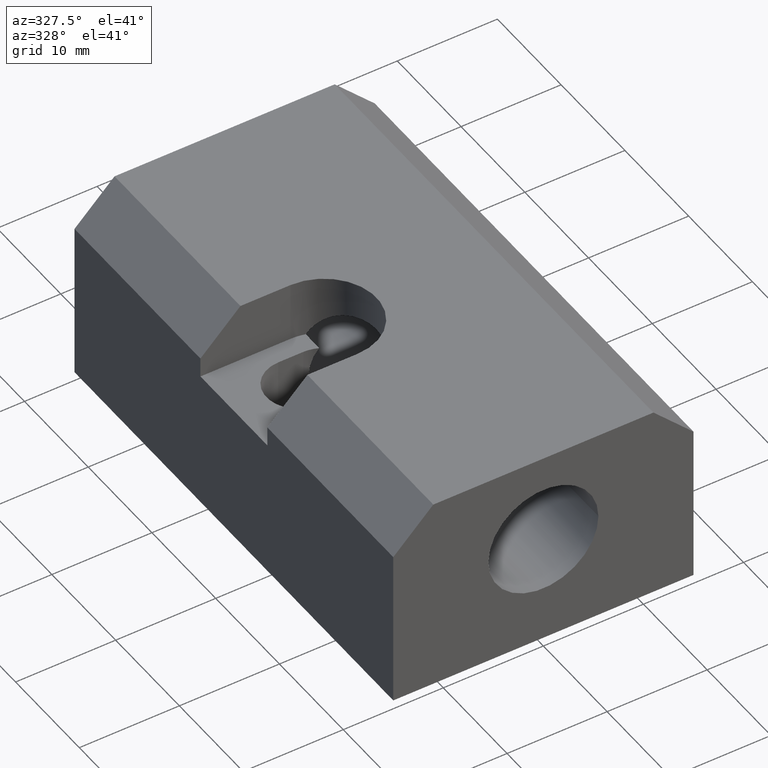
[diagram: clean part render]
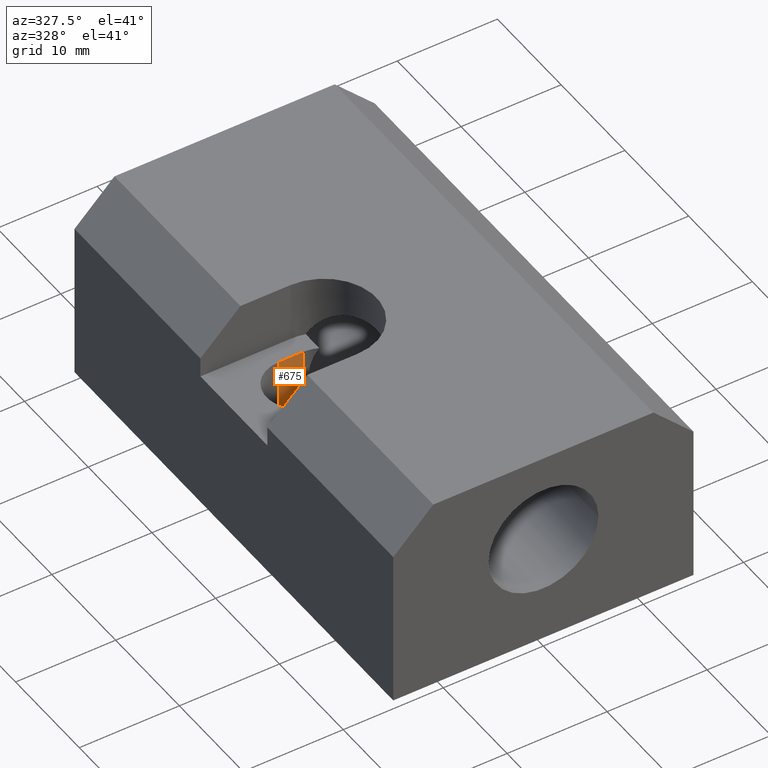
[diagram: same view with one face highlighted and labeled with its STEP entity id]
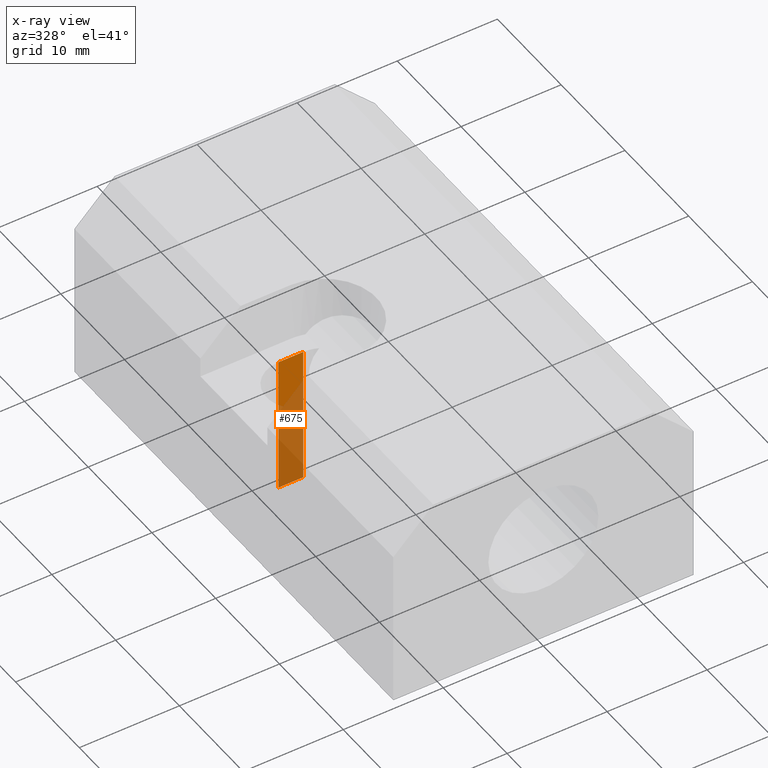
[diagram: x-ray of the same camera — body ghosted, the highlighted face saturated]
A machine part, auxiliary view. The second image highlights one B-rep face of the part: STEP entity #675.
The next image is the same camera in x-ray: the body ghosted, the highlighted face saturated — about 69% of this face is hidden behind the body in this view.
In plain terms, the highlighted planar face has unit normal (0, -1, -0).
Its self-contained STEP definition (entity closure, byte-faithful):
#274=CARTESIAN_POINT('',(-8.499999999966562,-21.750000000116923,-0.000000561358135));
#275=VERTEX_POINT('',#274);
#293=CARTESIAN_POINT('',(-5.999999999976566,-21.750000000116927,-0.000000561358135));
#294=VERTEX_POINT('',#293);
#302=CARTESIAN_POINT('',(-8.499999999966562,-21.750000000116923,-0.000000561358135));
#303=DIRECTION('',(1.0,0.0,0.0));
#304=VECTOR('',#303,2.499999999989996);
#305=LINE('',#302,#304);
#306=EDGE_CURVE('',#275,#294,#305,.T.);
#575=CARTESIAN_POINT('',(-8.499999999966569,-21.750000361450848,13.999997581081587));
#576=VERTEX_POINT('',#575);
#584=CARTESIAN_POINT('',(-5.999999999976573,-21.750000361450848,13.999997581081601));
#585=VERTEX_POINT('',#584);
#586=CARTESIAN_POINT('',(-5.999999999976573,-21.750000361450848,13.999997581081601));
#587=DIRECTION('',(-1.0,0.0,0.0));
#588=VECTOR('',#587,2.499999999989996);
#589=LINE('',#586,#588);
#590=EDGE_CURVE('',#585,#576,#589,.T.);
#618=CARTESIAN_POINT('',(-8.499999999966569,-21.750000361450848,13.999997581081587));
#619=DIRECTION('',(3.806479E-016,0.000000025809569,-1.000000000000000));
#620=VECTOR('',#619,13.999998142439727);
#621=LINE('',#618,#620);
#622=EDGE_CURVE('',#576,#275,#621,.T.);
#653=CARTESIAN_POINT('',(-5.999999999976573,-21.750000361450848,13.999997581081601));
#654=DIRECTION('',(3.172066E-016,0.000000025809569,-1.000000000000000));
#655=VECTOR('',#654,13.999998142439740);
#656=LINE('',#653,#655);
#657=EDGE_CURVE('',#585,#294,#656,.T.);
#664=CARTESIAN_POINT('',(-5.999999999976573,-21.750000361450848,13.999997581081601));
#665=DIRECTION('',(0.0,-1.000000000000000,-0.000000025809569));
#666=DIRECTION('',(-1.0,0.0,0.0));
#667=AXIS2_PLACEMENT_3D('',#664,#665,#666);
#668=PLANE('',#667);
#669=ORIENTED_EDGE('',*,*,#622,.T.);
#670=ORIENTED_EDGE('',*,*,#306,.T.);
#671=ORIENTED_EDGE('',*,*,#657,.F.);
#672=ORIENTED_EDGE('',*,*,#590,.T.);
#673=EDGE_LOOP('',(#669,#670,#671,#672));
#674=FACE_OUTER_BOUND('',#673,.T.);
#675=ADVANCED_FACE('',(#674),#668,.T.);